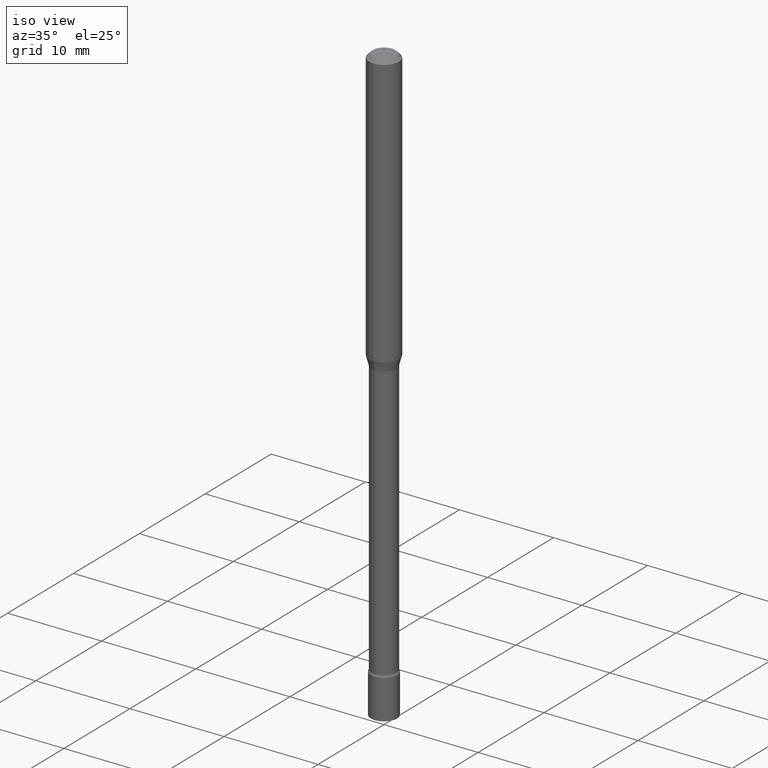
[diagram: clean part render]
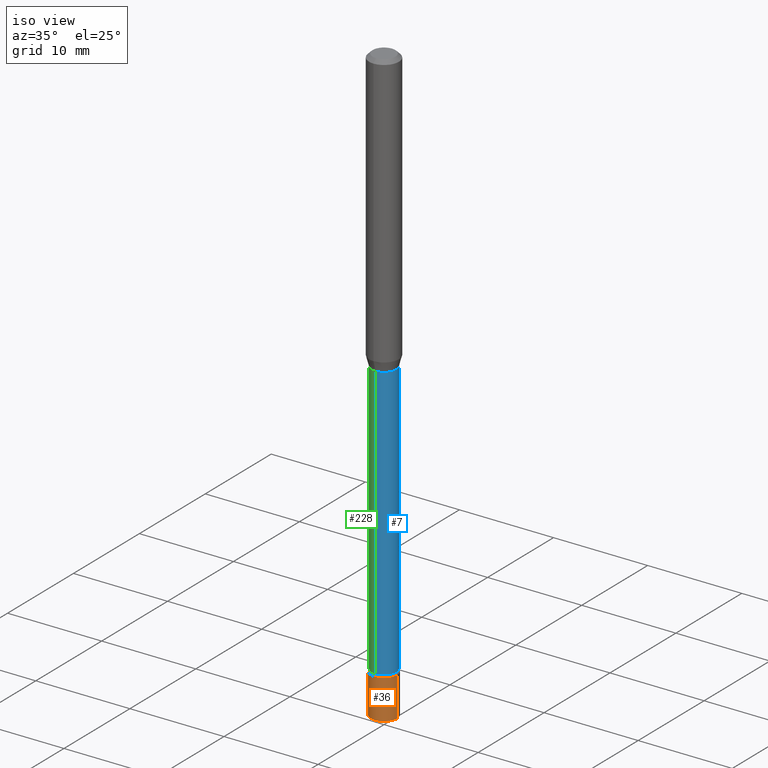
[diagram: same view with three faces highlighted in distinct colors, each labeled with its STEP entity id]
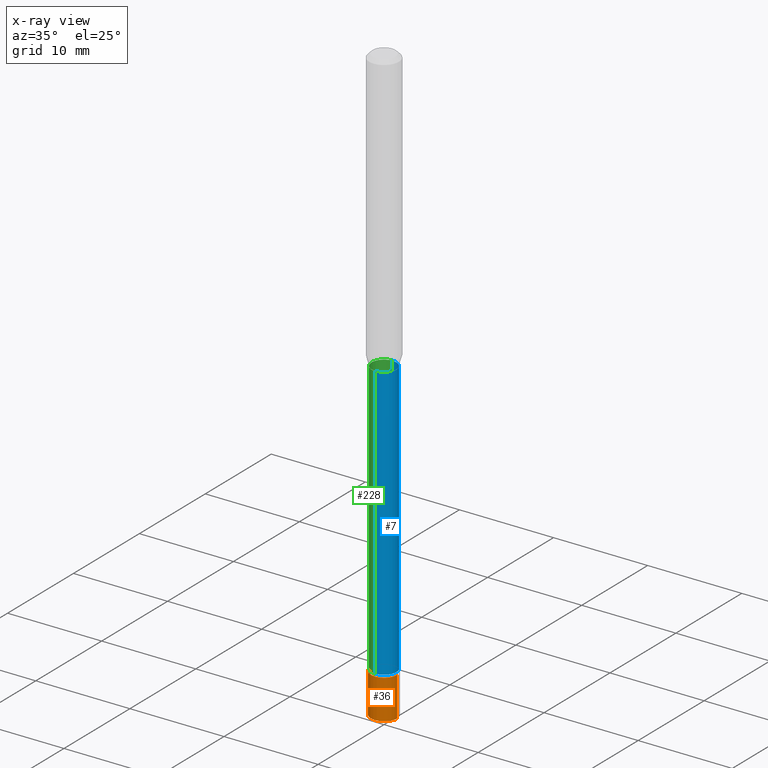
[diagram: x-ray of the same camera — body ghosted, the three highlighted faces saturated]
A machine part, iso view with three faces highlighted in distinct colors.
The next image is the same camera in x-ray (body ghosted, the three faces saturated) — at least one of them is partly hidden behind the body in this view.
Their STEP definitions:

[orange] entity #36 — the highlighted cylindrical surface (edge-blend (fillet) strip) has radius 1.397 mm, axis along (-0, 0, 1).
#8 = DIRECTION ( 'NONE',  ( -2.445468806185136597E-29, 3.491481338843145583E-15, 1.000000000000000000 ) ) ;
#20 = FACE_OUTER_BOUND ( 'NONE', #261, .T. ) ;
#36 = ADVANCED_FACE ( 'NONE', ( #20 ), #290, .T. ) ;
#44 = DIRECTION ( 'NONE',  ( -2.445468806185136597E-29, 3.491481338843145583E-15, 1.000000000000000000 ) ) ;
#54 = AXIS2_PLACEMENT_3D ( 'NONE', #171, #331, #501 ) ;
#125 = DIRECTION ( 'NONE',  ( 1.000000000000000000, -6.982962677686262766E-15, 0.000000000000000000 ) ) ;
#141 = ORIENTED_EDGE ( 'NONE', *, *, #274, .F. ) ;
#146 = VERTEX_POINT ( 'NONE', #371 ) ;
#154 = VERTEX_POINT ( 'NONE', #491 ) ;
#156 = CARTESIAN_POINT ( 'NONE',  ( 6.113672015462842613E-29, -8.728703347107864943E-15, -2.500000000000000000 ) ) ;
#171 = CARTESIAN_POINT ( 'NONE',  ( 0.000000000000000000, 0.000000000000000000, 0.000000000000000000 ) ) ;
#180 = VERTEX_POINT ( 'NONE', #201 ) ;
#201 = CARTESIAN_POINT ( 'NONE',  ( 0.05500000000000000028, -9.112766294380608350E-15, -2.500000000000000000 ) ) ;
#204 = DIRECTION ( 'NONE',  ( -2.445468806185136877E-29, 3.491481338843145188E-15, 1.000000000000000000 ) ) ;
#224 = ORIENTED_EDGE ( 'NONE', *, *, #333, .T. ) ;
#243 = EDGE_CURVE ( 'NONE', #146, #180, #515, .T. ) ;
#245 = DIRECTION ( 'NONE',  ( -2.445468806185136877E-29, 3.491481338843145188E-15, 1.000000000000000000 ) ) ;
#261 = EDGE_LOOP ( 'NONE', ( #308, #508, #224, #141 ) ) ;
#266 = AXIS2_PLACEMENT_3D ( 'NONE', #156, #8, #125 ) ;
#269 = CARTESIAN_POINT ( 'NONE',  ( -0.05500000000000000028, -8.049857631985250360E-15, -2.334999999999999964 ) ) ;
#274 = EDGE_CURVE ( 'NONE', #430, #154, #317, .T. ) ;
#290 = CYLINDRICAL_SURFACE ( 'NONE', #54, 0.05500000000000000028 ) ;
#308 = ORIENTED_EDGE ( 'NONE', *, *, #464, .F. ) ;
#317 = CIRCLE ( 'NONE', #391, 0.05500000000000000028 ) ;
#323 = CARTESIAN_POINT ( 'NONE',  ( -0.05500000000000000028, 3.907985046680551042E-16, -2.705414299640198362E-30 ) ) ;
#331 = DIRECTION ( 'NONE',  ( -2.445468806185136597E-29, 3.491481338843145583E-15, 1.000000000000000000 ) ) ;
#333 = EDGE_CURVE ( 'NONE', #180, #154, #480, .T. ) ;
#371 = CARTESIAN_POINT ( 'NONE',  ( -0.05500000000000000028, -8.049857631985250360E-15, -2.500000000000000000 ) ) ;
#391 = AXIS2_PLACEMENT_3D ( 'NONE', #520, #44, #438 ) ;
#398 = VECTOR ( 'NONE', #245, 39.37007874015748143 ) ;
#402 = LINE ( 'NONE', #323, #406 ) ;
#406 = VECTOR ( 'NONE', #204, 39.37007874015748143 ) ;
#430 = VERTEX_POINT ( 'NONE', #269 ) ;
#438 = DIRECTION ( 'NONE',  ( 1.000000000000000000, -6.982962677686262766E-15, 0.000000000000000000 ) ) ;
#464 = EDGE_CURVE ( 'NONE', #146, #430, #402, .T. ) ;
#478 = CARTESIAN_POINT ( 'NONE',  ( 0.05500000000000000028, -3.840629472727446888E-16, 2.681897226687764826E-30 ) ) ;
#480 = LINE ( 'NONE', #478, #398 ) ;
#491 = CARTESIAN_POINT ( 'NONE',  ( 0.05500000000000000028, -8.536671873471490084E-15, -2.334999999999999964 ) ) ;
#501 = DIRECTION ( 'NONE',  ( 1.000000000000000000, -6.982962677686266711E-15, 4.876176775795935793E-29 ) ) ;
#508 = ORIENTED_EDGE ( 'NONE', *, *, #243, .T. ) ;
#515 = CIRCLE ( 'NONE', #266, 0.05500000000000000028 ) ;
#520 = CARTESIAN_POINT ( 'NONE',  ( 5.710169662442294357E-29, -8.152608926198745099E-15, -2.334999999999999964 ) ) ;

[blue] entity #7 — the highlighted cylindrical surface (edge-blend (fillet) strip) has radius 1.3132 mm, axis along (-0, 0, 1).
#3 = LINE ( 'NONE', #360, #441 ) ;
#7 = ADVANCED_FACE ( 'NONE', ( #298 ), #105, .T. ) ;
#26 = VERTEX_POINT ( 'NONE', #134 ) ;
#52 = AXIS2_PLACEMENT_3D ( 'NONE', #310, #155, #355 ) ;
#63 = CIRCLE ( 'NONE', #52, 0.05170000000000000984 ) ;
#76 = DIRECTION ( 'NONE',  ( -2.445353586017981575E-29, 3.491646340680436427E-15, 1.000000000000000000 ) ) ;
#82 = AXIS2_PLACEMENT_3D ( 'NONE', #420, #277, #482 ) ;
#87 = EDGE_LOOP ( 'NONE', ( #222, #342, #444, #111 ) ) ;
#105 = CYLINDRICAL_SURFACE ( 'NONE', #400, 0.05170000000000002371 ) ;
#111 = ORIENTED_EDGE ( 'NONE', *, *, #389, .F. ) ;
#128 = VERTEX_POINT ( 'NONE', #407 ) ;
#134 = CARTESIAN_POINT ( 'NONE',  ( 3.790745495280708501E-16, 0.05169999999999193296, -2.325613307291702903 ) ) ;
#155 = DIRECTION ( 'NONE',  ( -2.445353586017981575E-29, 3.491646340680436033E-15, 1.000000000000000000 ) ) ;
#200 = CARTESIAN_POINT ( 'NONE',  ( 3.673505943879719153E-16, 0.05170000000000002371, -1.805181158131786193E-16 ) ) ;
#220 = EDGE_CURVE ( 'NONE', #128, #513, #63, .T. ) ;
#222 = ORIENTED_EDGE ( 'NONE', *, *, #312, .T. ) ;
#244 = CIRCLE ( 'NONE', #82, 0.05170000000000005147 ) ;
#251 = DIRECTION ( 'NONE',  ( -2.445353586017981575E-29, 3.491646340680436033E-15, 1.000000000000000000 ) ) ;
#255 = DIRECTION ( 'NONE',  ( -6.982962677686265922E-15, -1.000000000000000000, 3.491646340680436033E-15 ) ) ;
#276 = EDGE_CURVE ( 'NONE', #26, #513, #353, .T. ) ;
#277 = DIRECTION ( 'NONE',  ( -2.445353586017981575E-29, 3.491646340680436033E-15, 1.000000000000000000 ) ) ;
#298 = FACE_OUTER_BOUND ( 'NONE', #87, .T. ) ;
#299 = CARTESIAN_POINT ( 'NONE',  ( 0.000000000000000000, 0.000000000000000000, 0.000000000000000000 ) ) ;
#310 = CARTESIAN_POINT ( 'NONE',  ( 2.890346285107471227E-29, -4.127037941424550740E-15, -1.181974787463810683 ) ) ;
#312 = EDGE_CURVE ( 'NONE', #461, #26, #244, .T. ) ;
#342 = ORIENTED_EDGE ( 'NONE', *, *, #276, .T. ) ;
#353 = LINE ( 'NONE', #200, #415 ) ;
#355 = DIRECTION ( 'NONE',  ( -6.982962677686264344E-15, -1.000000000000000000, 2.642019336232362457E-15 ) ) ;
#358 = DIRECTION ( 'NONE',  ( -2.445353586017981575E-29, 3.491646340680436427E-15, 1.000000000000000000 ) ) ;
#360 = CARTESIAN_POINT ( 'NONE',  ( -3.610191704363801021E-16, -0.05170000000000002371, 1.805181158131786193E-16 ) ) ;
#389 = EDGE_CURVE ( 'NONE', #461, #128, #3, .T. ) ;
#400 = AXIS2_PLACEMENT_3D ( 'NONE', #299, #251, #255 ) ;
#407 = CARTESIAN_POINT ( 'NONE',  ( -3.610191704363511115E-16, -0.05170000000000413154, -1.181974787463810683 ) ) ;
#413 = CARTESIAN_POINT ( 'NONE',  ( 3.673505943880289105E-16, 0.05169999999999588119, -1.181974787463810905 ) ) ;
#415 = VECTOR ( 'NONE', #358, 39.37007874015748143 ) ;
#420 = CARTESIAN_POINT ( 'NONE',  ( 5.686946840676904514E-29, -8.120219194242801000E-15, -2.325613307291702903 ) ) ;
#441 = VECTOR ( 'NONE', #76, 39.37007874015748143 ) ;
#444 = ORIENTED_EDGE ( 'NONE', *, *, #220, .F. ) ;
#445 = CARTESIAN_POINT ( 'NONE',  ( -3.610191704363233535E-16, -0.05170000000000816998, -2.325613307291702458 ) ) ;
#461 = VERTEX_POINT ( 'NONE', #445 ) ;
#482 = DIRECTION ( 'NONE',  ( -6.982962677686265922E-15, -1.000000000000000000, 5.284038672464720181E-15 ) ) ;
#513 = VERTEX_POINT ( 'NONE', #413 ) ;

[green] entity #228 — the highlighted cylindrical surface (edge-blend (fillet) strip) has radius 1.3132 mm, axis along (-0, 0, 1).
#3 = LINE ( 'NONE', #360, #441 ) ;
#26 = VERTEX_POINT ( 'NONE', #134 ) ;
#65 = DIRECTION ( 'NONE',  ( -2.445353586017981575E-29, 3.491646340680436033E-15, 1.000000000000000000 ) ) ;
#76 = DIRECTION ( 'NONE',  ( -2.445353586017981575E-29, 3.491646340680436427E-15, 1.000000000000000000 ) ) ;
#85 = AXIS2_PLACEMENT_3D ( 'NONE', #193, #397, #160 ) ;
#93 = CARTESIAN_POINT ( 'NONE',  ( 0.000000000000000000, 0.000000000000000000, 0.000000000000000000 ) ) ;
#97 = DIRECTION ( 'NONE',  ( -2.445353586017981575E-29, 3.491646340680436033E-15, 1.000000000000000000 ) ) ;
#107 = ORIENTED_EDGE ( 'NONE', *, *, #483, .F. ) ;
#119 = CIRCLE ( 'NONE', #477, 0.05170000000000000984 ) ;
#128 = VERTEX_POINT ( 'NONE', #407 ) ;
#134 = CARTESIAN_POINT ( 'NONE',  ( 3.790745495280708501E-16, 0.05169999999999193296, -2.325613307291702903 ) ) ;
#149 = ORIENTED_EDGE ( 'NONE', *, *, #276, .F. ) ;
#160 = DIRECTION ( 'NONE',  ( -6.982962677686265922E-15, -1.000000000000000000, 5.284038672464720181E-15 ) ) ;
#193 = CARTESIAN_POINT ( 'NONE',  ( 5.686946840676904514E-29, -8.120219194242801000E-15, -2.325613307291702903 ) ) ;
#200 = CARTESIAN_POINT ( 'NONE',  ( 3.673505943879719153E-16, 0.05170000000000002371, -1.805181158131786193E-16 ) ) ;
#228 = ADVANCED_FACE ( 'NONE', ( #324 ), #452, .T. ) ;
#276 = EDGE_CURVE ( 'NONE', #26, #513, #353, .T. ) ;
#293 = ORIENTED_EDGE ( 'NONE', *, *, #389, .T. ) ;
#302 = ORIENTED_EDGE ( 'NONE', *, *, #410, .T. ) ;
#303 = CIRCLE ( 'NONE', #85, 0.05170000000000005147 ) ;
#324 = FACE_OUTER_BOUND ( 'NONE', #404, .T. ) ;
#353 = LINE ( 'NONE', #200, #415 ) ;
#358 = DIRECTION ( 'NONE',  ( -2.445353586017981575E-29, 3.491646340680436427E-15, 1.000000000000000000 ) ) ;
#360 = CARTESIAN_POINT ( 'NONE',  ( -3.610191704363801021E-16, -0.05170000000000002371, 1.805181158131786193E-16 ) ) ;
#389 = EDGE_CURVE ( 'NONE', #461, #128, #3, .T. ) ;
#397 = DIRECTION ( 'NONE',  ( -2.445353586017981575E-29, 3.491646340680436033E-15, 1.000000000000000000 ) ) ;
#404 = EDGE_LOOP ( 'NONE', ( #149, #302, #293, #107 ) ) ;
#407 = CARTESIAN_POINT ( 'NONE',  ( -3.610191704363511115E-16, -0.05170000000000413154, -1.181974787463810683 ) ) ;
#410 = EDGE_CURVE ( 'NONE', #26, #461, #303, .T. ) ;
#413 = CARTESIAN_POINT ( 'NONE',  ( 3.673505943880289105E-16, 0.05169999999999588119, -1.181974787463810905 ) ) ;
#415 = VECTOR ( 'NONE', #358, 39.37007874015748143 ) ;
#429 = DIRECTION ( 'NONE',  ( -6.982962677686265922E-15, -1.000000000000000000, 3.491646340680436033E-15 ) ) ;
#441 = VECTOR ( 'NONE', #76, 39.37007874015748143 ) ;
#445 = CARTESIAN_POINT ( 'NONE',  ( -3.610191704363233535E-16, -0.05170000000000816998, -2.325613307291702458 ) ) ;
#451 = DIRECTION ( 'NONE',  ( -6.982962677686264344E-15, -1.000000000000000000, 2.642019336232362457E-15 ) ) ;
#452 = CYLINDRICAL_SURFACE ( 'NONE', #459, 0.05170000000000002371 ) ;
#456 = CARTESIAN_POINT ( 'NONE',  ( 2.890346285107471227E-29, -4.127037941424550740E-15, -1.181974787463810683 ) ) ;
#459 = AXIS2_PLACEMENT_3D ( 'NONE', #93, #65, #429 ) ;
#461 = VERTEX_POINT ( 'NONE', #445 ) ;
#477 = AXIS2_PLACEMENT_3D ( 'NONE', #456, #97, #451 ) ;
#483 = EDGE_CURVE ( 'NONE', #513, #128, #119, .T. ) ;
#513 = VERTEX_POINT ( 'NONE', #413 ) ;